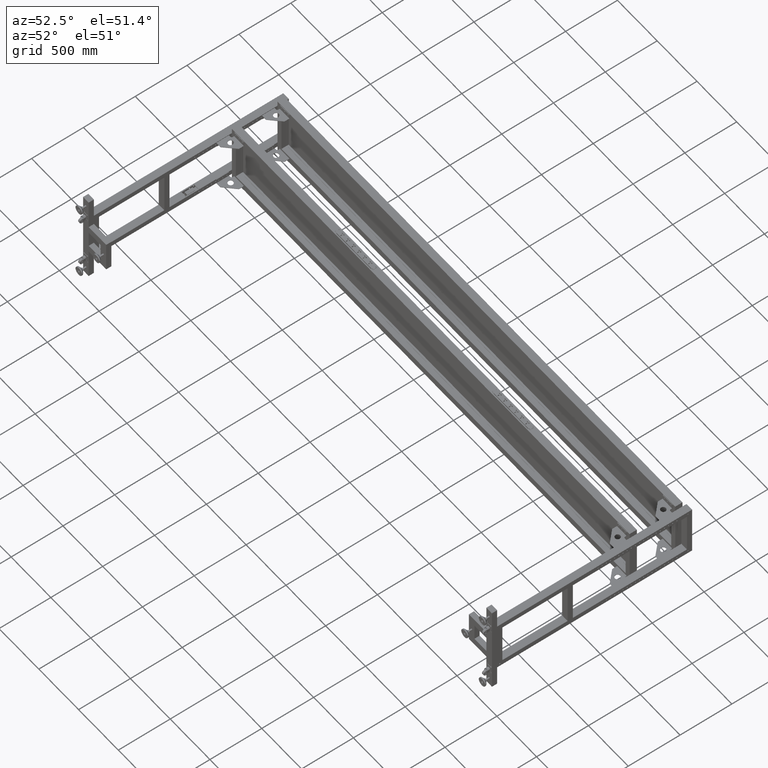
[diagram: clean part render]
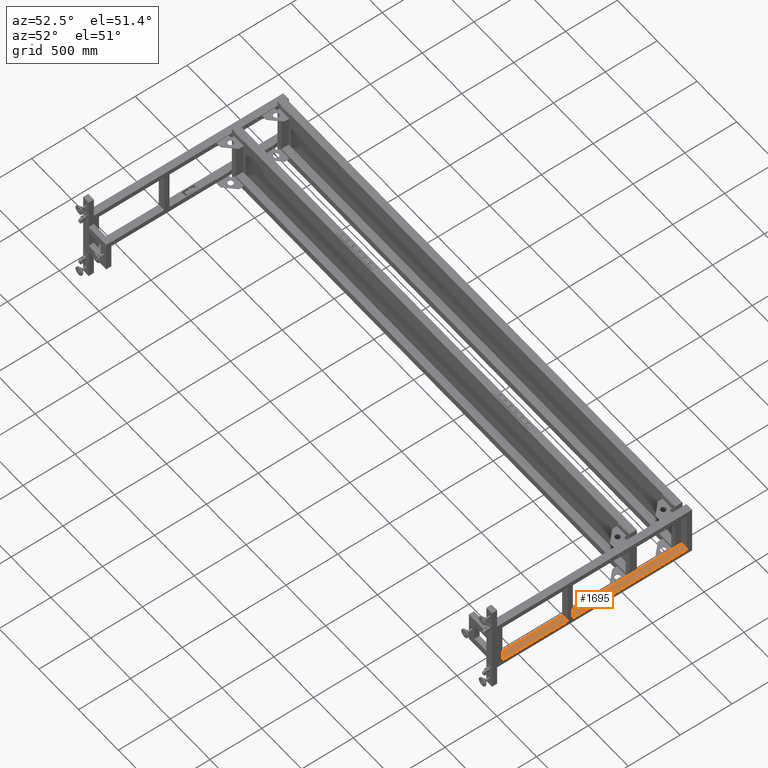
[diagram: same view with one face highlighted and labeled with its STEP entity id]
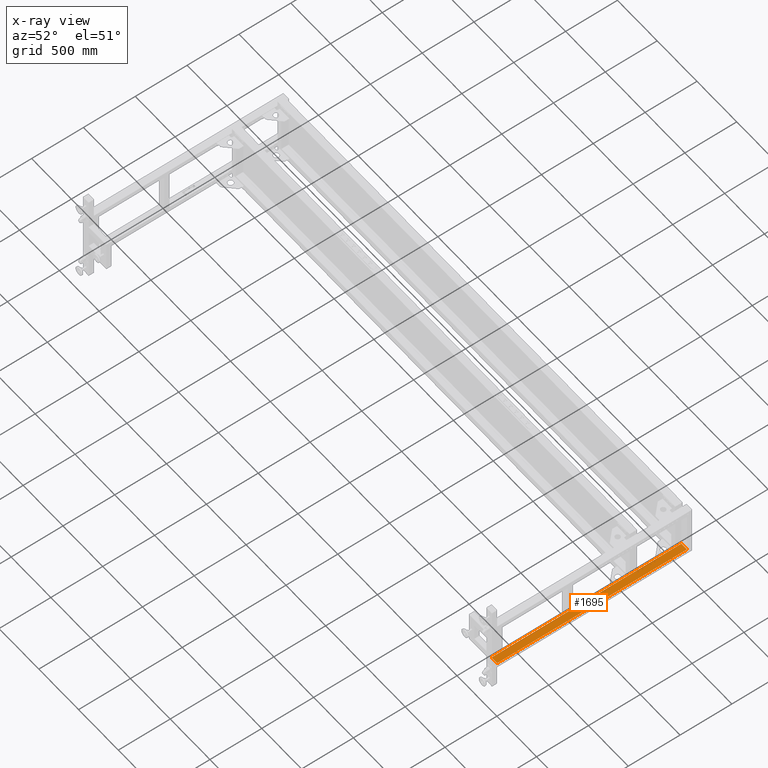
[diagram: x-ray of the same camera — body ghosted, the highlighted face saturated]
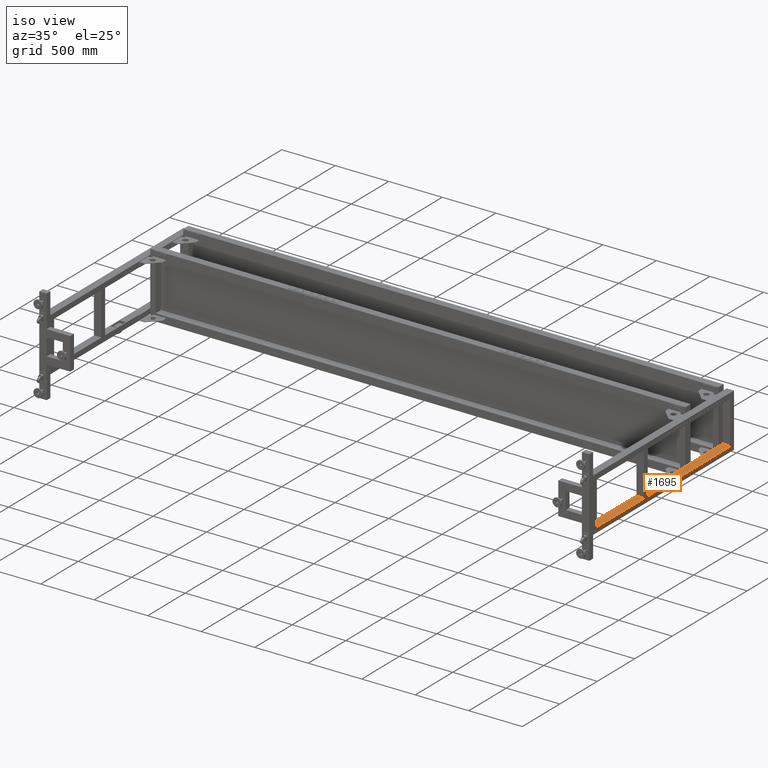
[diagram: same view with one face highlighted and labeled with its STEP entity id]
A machine part, auxiliary view. The second image highlights one B-rep face of the part: STEP entity #1695.
The next image is the same camera in x-ray: the body ghosted, the highlighted face saturated — about 0% of this face is hidden behind the body in this view.
A second angle (iso view) of the same face is appended — the face is thin or edge-on in the first view.
In plain terms, the highlighted planar face has unit normal (0, 0, 1).
Its self-contained STEP definition (entity closure, byte-faithful):
#234 = ORIENTED_EDGE ( 'NONE', *, *, #33575, .T. ) ;
#367 = LINE ( 'NONE', #119058, #74136 ) ;
#1418 = VERTEX_POINT ( 'NONE', #4741 ) ;
#1695 = ADVANCED_FACE ( 'NONE', ( #25357 ), #52804, .T. ) ;
#2851 = ORIENTED_EDGE ( 'NONE', *, *, #3367, .F. ) ;
#3367 = EDGE_CURVE ( 'NONE', #38845, #98699, #93838, .T. ) ;
#4741 = CARTESIAN_POINT ( 'NONE',  ( 3731.811469511923860, 926.9410804020135402, -200.0000000000000284 ) ) ;
#5873 = VECTOR ( 'NONE', #30524, 1000.000000000000000 ) ;
#8465 = CARTESIAN_POINT ( 'NONE',  ( 3801.827512562815627, -844.5589195979882788, -200.0000000000000000 ) ) ;
#8621 = CARTESIAN_POINT ( 'NONE',  ( 3801.827512562815627, -844.5589195979882788, -200.0000000000000000 ) ) ;
#8914 = ORIENTED_EDGE ( 'NONE', *, *, #39253, .F. ) ;
#10456 = CARTESIAN_POINT ( 'NONE',  ( 3801.827512562814718, 919.4410804020144496, -200.0000000000000284 ) ) ;
#11794 = EDGE_LOOP ( 'NONE', ( #66096, #2851, #55292, #104531, #234, #92505, #62302, #8914 ) ) ;
#16896 = LINE ( 'NONE', #54048, #82260 ) ;
#20295 = CARTESIAN_POINT ( 'NONE',  ( 3731.827512562816082, 986.4410804020143360, -200.0000000000000284 ) ) ;
#21462 = EDGE_CURVE ( 'NONE', #105972, #46710, #86489, .T. ) ;
#24770 = DIRECTION ( 'NONE',  ( 1.292497351771487035E-15, -1.000000000000000000, -0.000000000000000000 ) ) ;
#25357 = FACE_OUTER_BOUND ( 'NONE', #11794, .T. ) ;
#29397 = AXIS2_PLACEMENT_3D ( 'NONE', #54575, #103271, #75141 ) ;
#30524 = DIRECTION ( 'NONE',  ( -1.000000000000000000, -1.878166830148309091E-15, 0.000000000000000000 ) ) ;
#33575 = EDGE_CURVE ( 'NONE', #78655, #105972, #54905, .T. ) ;
#33946 = EDGE_CURVE ( 'NONE', #55898, #46710, #52684, .T. ) ;
#35674 = DIRECTION ( 'NONE',  ( -2.924973517714874012E-16, 1.000000000000000000, 0.000000000000000000 ) ) ;
#38845 = VERTEX_POINT ( 'NONE', #85894 ) ;
#39253 = EDGE_CURVE ( 'NONE', #1418, #55898, #16896, .T. ) ;
#42839 = CARTESIAN_POINT ( 'NONE',  ( 3731.827512562816082, 926.9410804020134265, -200.0000000000000000 ) ) ;
#46710 = VERTEX_POINT ( 'NONE', #20295 ) ;
#49441 = CARTESIAN_POINT ( 'NONE',  ( 3801.827512562814718, 986.4410804020143360, -200.0000000000000284 ) ) ;
#50376 = EDGE_CURVE ( 'NONE', #78655, #52019, #100972, .T. ) ;
#52019 = VERTEX_POINT ( 'NONE', #110187 ) ;
#52684 = LINE ( 'NONE', #89792, #80950 ) ;
#52768 = VECTOR ( 'NONE', #24770, 1000.000000000000000 ) ;
#52804 = PLANE ( 'NONE',  #29397 ) ;
#52892 = CARTESIAN_POINT ( 'NONE',  ( 3731.811469511923860, 919.4410804020142223, -200.0000000000000284 ) ) ;
#54048 = CARTESIAN_POINT ( 'NONE',  ( 3801.827512562813808, 926.9410804020136538, -200.0000000000000000 ) ) ;
#54575 = CARTESIAN_POINT ( 'NONE',  ( 3801.827512562815627, -844.5589195979882788, -200.0000000000000000 ) ) ;
#54905 = LINE ( 'NONE', #91432, #55495 ) ;
#55292 = ORIENTED_EDGE ( 'NONE', *, *, #99197, .F. ) ;
#55495 = VECTOR ( 'NONE', #65181, 1000.000000000000000 ) ;
#55898 = VERTEX_POINT ( 'NONE', #42839 ) ;
#62302 = ORIENTED_EDGE ( 'NONE', *, *, #33946, .F. ) ;
#65181 = DIRECTION ( 'NONE',  ( -2.924973517714874012E-16, 1.000000000000000000, 0.000000000000000000 ) ) ;
#66096 = ORIENTED_EDGE ( 'NONE', *, *, #75374, .T. ) ;
#67026 = CARTESIAN_POINT ( 'NONE',  ( 3801.827512562814718, 986.4410804020143360, -200.0000000000000284 ) ) ;
#71009 = CARTESIAN_POINT ( 'NONE',  ( 3731.811469511923860, 986.4410804020143360, -200.0000000000000284 ) ) ;
#74136 = VECTOR ( 'NONE', #35674, 1000.000000000000000 ) ;
#75141 = DIRECTION ( 'NONE',  ( 2.924973517714874012E-16, -1.000000000000000000, 0.000000000000000000 ) ) ;
#75374 = EDGE_CURVE ( 'NONE', #1418, #98699, #108203, .T. ) ;
#77324 = DIRECTION ( 'NONE',  ( -1.000000000000000000, -1.878166830148309091E-15, 0.000000000000000000 ) ) ;
#78655 = VERTEX_POINT ( 'NONE', #8621 ) ;
#80950 = VECTOR ( 'NONE', #100713, 1000.000000000000000 ) ;
#82260 = VECTOR ( 'NONE', #91158, 1000.000000000000000 ) ;
#85894 = CARTESIAN_POINT ( 'NONE',  ( 3731.827512562814718, 919.4410804020117212, -200.0000000000000000 ) ) ;
#86489 = LINE ( 'NONE', #67026, #5873 ) ;
#89792 = CARTESIAN_POINT ( 'NONE',  ( 3731.827512562817901, -844.5589195979885062, -200.0000000000000000 ) ) ;
#91158 = DIRECTION ( 'NONE',  ( 1.000000000000000000, 7.373858394589093566E-16, 0.000000000000000000 ) ) ;
#91432 = CARTESIAN_POINT ( 'NONE',  ( 3801.827512562815627, -844.5589195979882788, -200.0000000000000000 ) ) ;
#92505 = ORIENTED_EDGE ( 'NONE', *, *, #21462, .T. ) ;
#92644 = VECTOR ( 'NONE', #77324, 1000.000000000000000 ) ;
#93838 = LINE ( 'NONE', #10456, #92644 ) ;
#94240 = DIRECTION ( 'NONE',  ( -1.000000000000000000, -2.924973517714874012E-16, 0.000000000000000000 ) ) ;
#98699 = VERTEX_POINT ( 'NONE', #52892 ) ;
#99197 = EDGE_CURVE ( 'NONE', #52019, #38845, #367, .T. ) ;
#100713 = DIRECTION ( 'NONE',  ( -1.292497351771487430E-15, 1.000000000000000000, 0.000000000000000000 ) ) ;
#100972 = LINE ( 'NONE', #8465, #104118 ) ;
#103271 = DIRECTION ( 'NONE',  ( 0.000000000000000000, 0.000000000000000000, 1.000000000000000000 ) ) ;
#104118 = VECTOR ( 'NONE', #94240, 1000.000000000000000 ) ;
#104531 = ORIENTED_EDGE ( 'NONE', *, *, #50376, .F. ) ;
#105972 = VERTEX_POINT ( 'NONE', #49441 ) ;
#108203 = LINE ( 'NONE', #71009, #52768 ) ;
#110187 = CARTESIAN_POINT ( 'NONE',  ( 3731.827512562815173, -844.5589195979883925, -200.0000000000000000 ) ) ;
#119058 = CARTESIAN_POINT ( 'NONE',  ( 3731.827512562815173, -844.5589195979883925, -200.0000000000000000 ) ) ;